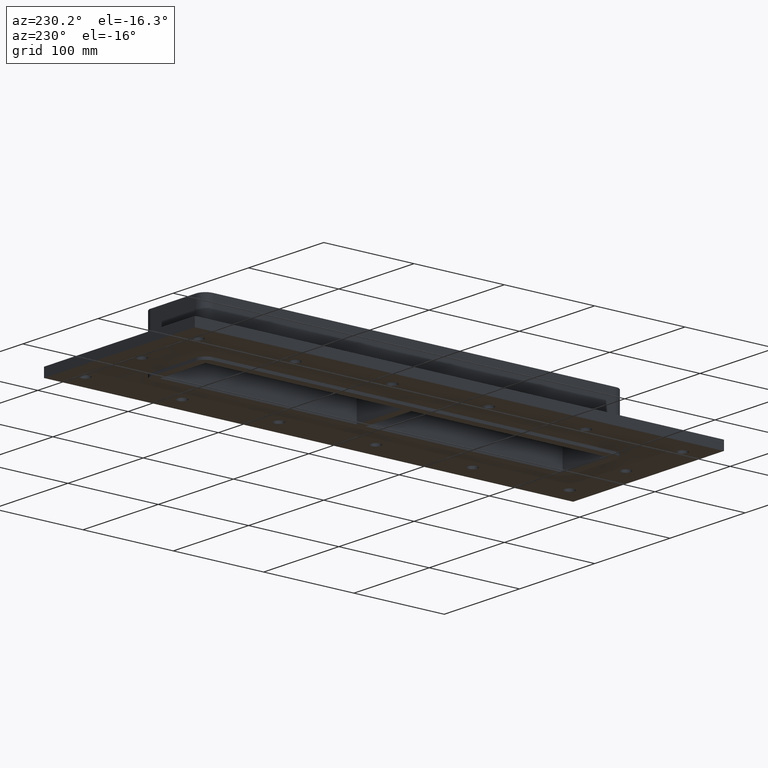
[diagram: clean part render]
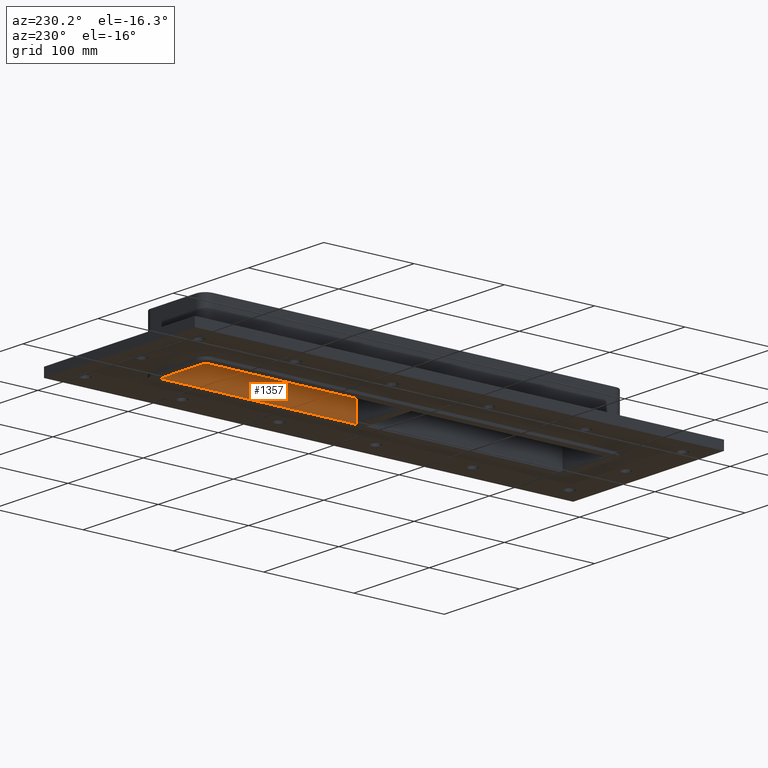
[diagram: same view with one face highlighted and labeled with its STEP entity id]
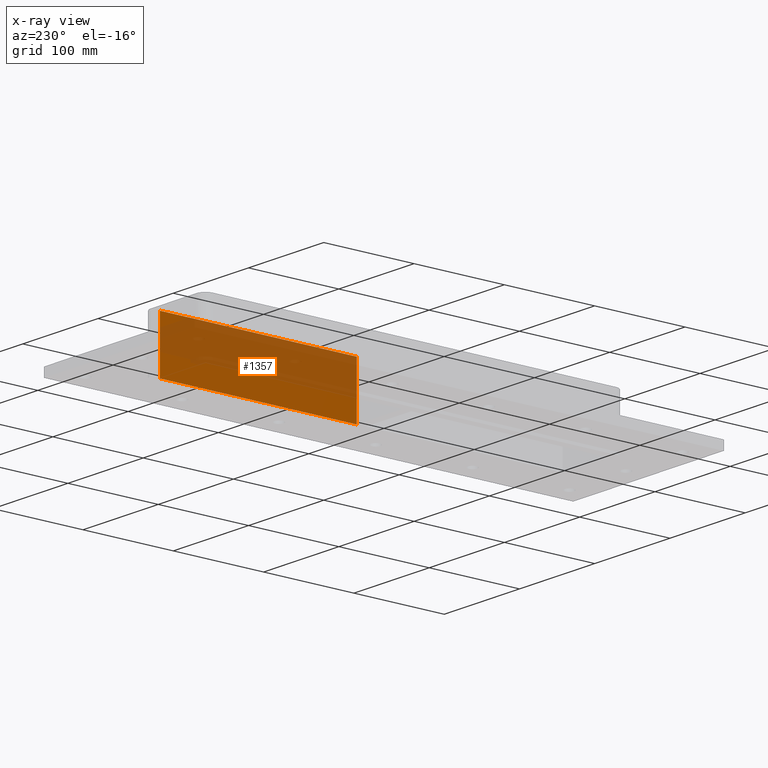
[diagram: x-ray of the same camera — body ghosted, the highlighted face saturated]
A machine part, auxiliary view. The second image highlights one B-rep face of the part: STEP entity #1357.
The next image is the same camera in x-ray: the body ghosted, the highlighted face saturated — about 60% of this face is hidden behind the body in this view.
In plain terms, the highlighted planar face has unit normal (1, 0, 0).
Its self-contained STEP definition (entity closure, byte-faithful):
#1112=CARTESIAN_POINT('',(30.249999999999986,4.99999999999762,-30.0));
#1113=VERTEX_POINT('',#1112);
#1120=CARTESIAN_POINT('',(30.24999999999995,222.99999999999761,-30.0));
#1121=VERTEX_POINT('',#1120);
#1122=CARTESIAN_POINT('',(30.249999999999986,4.999999999997627,-30.0));
#1123=DIRECTION('',(0.0,1.0,0.0));
#1124=VECTOR('',#1123,218.0);
#1125=LINE('',#1122,#1124);
#1126=EDGE_CURVE('',#1113,#1121,#1125,.T.);
#1317=CARTESIAN_POINT('',(30.249999999999986,4.99999999999762,30.0));
#1318=VERTEX_POINT('',#1317);
#1325=CARTESIAN_POINT('',(30.249999999999986,4.99999999999762,30.0));
#1326=DIRECTION('',(0.0,0.0,-1.0));
#1327=VECTOR('',#1326,60.0);
#1328=LINE('',#1325,#1327);
#1329=EDGE_CURVE('',#1318,#1113,#1328,.T.);
#1334=CARTESIAN_POINT('',(30.24999999999995,222.99999999999761,30.0));
#1335=DIRECTION('',(1.0,0.0,0.0));
#1336=DIRECTION('',(0.0,-1.0,0.0));
#1337=AXIS2_PLACEMENT_3D('',#1334,#1335,#1336);
#1338=PLANE('',#1337);
#1339=ORIENTED_EDGE('',*,*,#1126,.F.);
#1340=ORIENTED_EDGE('',*,*,#1329,.F.);
#1341=CARTESIAN_POINT('',(30.24999999999995,222.99999999999761,30.0));
#1342=VERTEX_POINT('',#1341);
#1343=CARTESIAN_POINT('',(30.24999999999995,222.99999999999761,30.0));
#1344=DIRECTION('',(0.0,-1.0,0.0));
#1345=VECTOR('',#1344,218.0);
#1346=LINE('',#1343,#1345);
#1347=EDGE_CURVE('',#1342,#1318,#1346,.T.);
#1348=ORIENTED_EDGE('',*,*,#1347,.F.);
#1349=CARTESIAN_POINT('',(30.24999999999995,222.99999999999761,30.0));
#1350=DIRECTION('',(0.0,0.0,-1.0));
#1351=VECTOR('',#1350,60.0);
#1352=LINE('',#1349,#1351);
#1353=EDGE_CURVE('',#1342,#1121,#1352,.T.);
#1354=ORIENTED_EDGE('',*,*,#1353,.T.);
#1355=EDGE_LOOP('',(#1339,#1340,#1348,#1354));
#1356=FACE_OUTER_BOUND('',#1355,.T.);
#1357=ADVANCED_FACE('',(#1356),#1338,.F.);